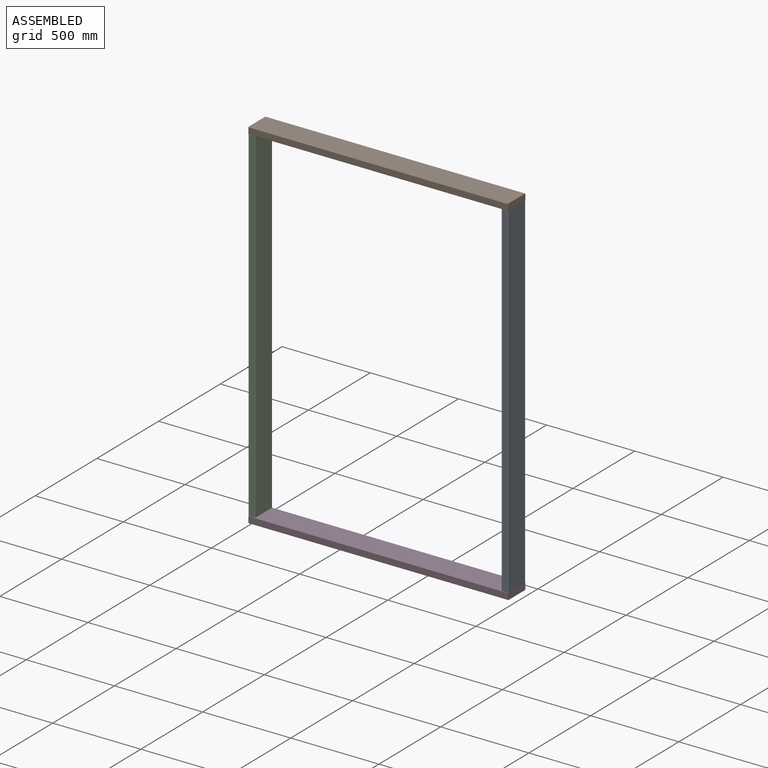
[diagram: assembled view]
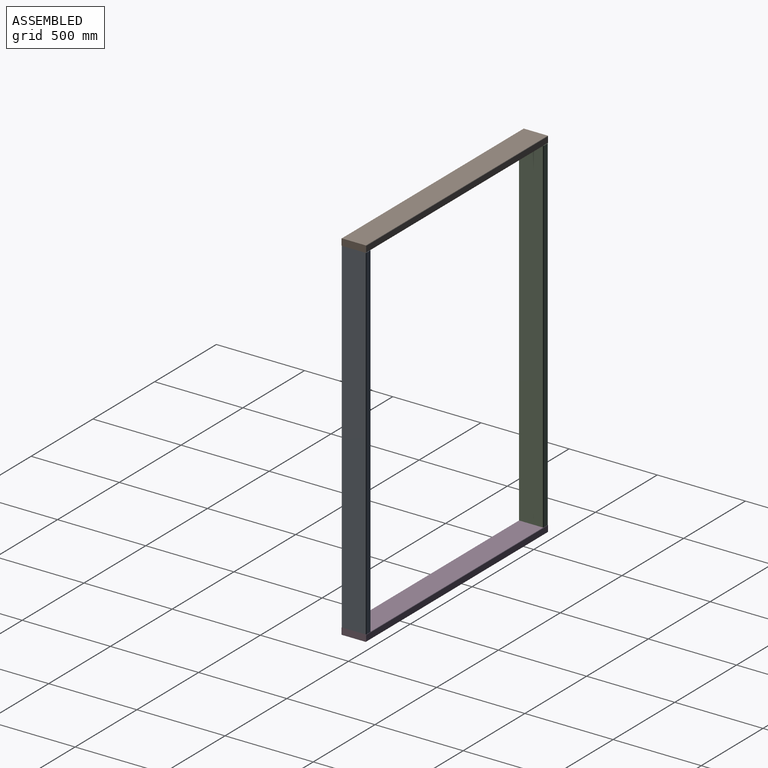
[diagram: assembled view, second angle]
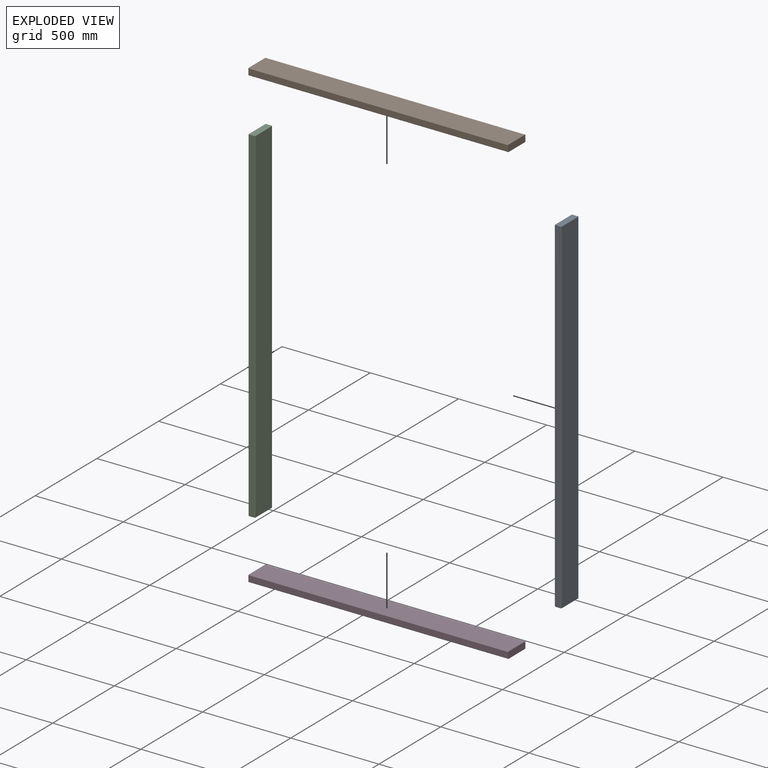
[diagram: exploded view]
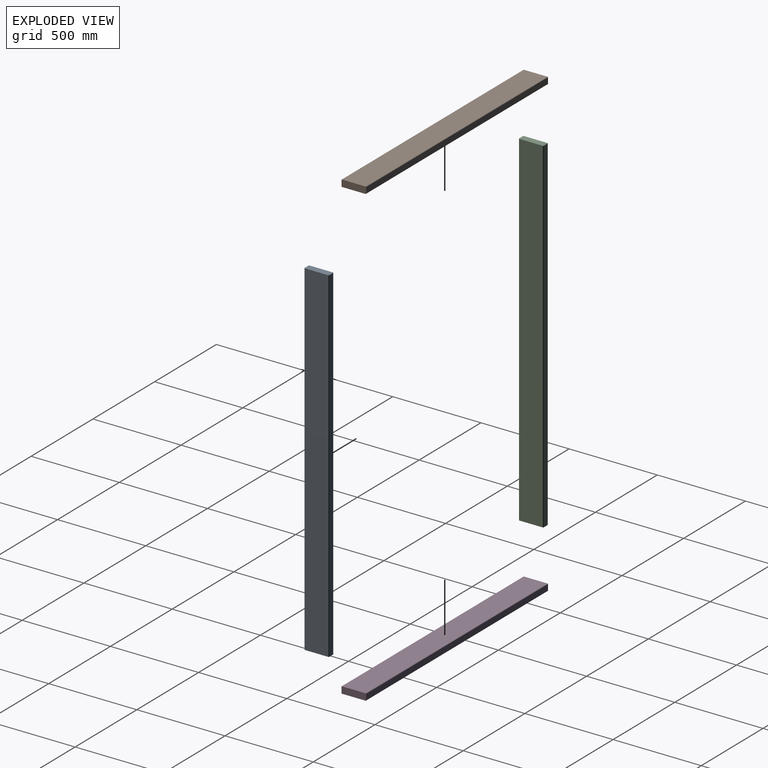
[diagram: exploded view, second angle]
ASSEMBLY  parts=4 mates=9
PART A: 10 faces, bbox 139.7x38.1x1955.8 mm
  f0: plane 1955.8x31.75mm, normal (-1,0,0), area 62096.7mm2, adj f1,f7,f8,f9
  f1: cylinder r=3.17mm len=1955.8mm, axis (0,0,-1), area 9754.1mm2, adj f0,f2,f8,f9
  f2: plane 1955.8x133.35mm, normal (0,-1,0), area 260805.9mm2, adj f1,f3,f8,f9
  f3: cylinder r=3.17mm len=1955.8mm, axis (0,0,-1), area 9754.1mm2, adj f2,f4,f8,f9
  f4: plane 1955.8x31.75mm, normal (1,0,0), area 62096.7mm2, adj f3,f5,f8,f9
  f5: cylinder r=3.17mm len=1955.8mm, axis (0,0,-1), area 9754.1mm2, adj f4,f6,f8,f9
  f6: plane 1955.8x133.35mm, normal (0,1,0), area 260805.9mm2, adj f5,f7,f8,f9
  f7: cylinder r=3.17mm len=1955.8mm, axis (0,0,-1), area 9754.1mm2, adj f0,f6,f8,f9
  f8: plane 139.7x38.1mm, normal (0,0,1), area 5313.9mm2, adj f0,f1,f2,f3,f4,f5,f6,f7
  f9: plane 139.7x38.1mm, normal (0,0,-1), area 5313.9mm2, adj f0,f1,f2,f3,f4,f5,f6,f7
PART B: 10 faces, bbox 139.7x38.1x1473.2 mm
  f0: plane 1473.2x31.75mm, normal (-1,0,0), area 46774.1mm2, adj f1,f7,f8,f9
  f1: cylinder r=3.17mm len=1473.2mm, axis (0,0,-1), area 7347.3mm2, adj f0,f2,f8,f9
  f2: plane 1473.2x133.35mm, normal (0,-1,0), area 196451.2mm2, adj f1,f3,f8,f9
  f3: cylinder r=3.17mm len=1473.2mm, axis (0,0,-1), area 7347.3mm2, adj f2,f4,f8,f9
  f4: plane 1473.2x31.75mm, normal (1,0,0), area 46774.1mm2, adj f3,f5,f8,f9
  f5: cylinder r=3.17mm len=1473.2mm, axis (0,0,-1), area 7347.3mm2, adj f4,f6,f8,f9
  f6: plane 1473.2x133.35mm, normal (0,1,0), area 196451.2mm2, adj f5,f7,f8,f9
  f7: cylinder r=3.17mm len=1473.2mm, axis (0,0,-1), area 7347.3mm2, adj f0,f6,f8,f9
  f8: plane 139.7x38.1mm, normal (0,0,1), area 5313.9mm2, adj f0,f1,f2,f3,f4,f5,f6,f7
  f9: plane 139.7x38.1mm, normal (0,0,-1), area 5313.9mm2, adj f0,f1,f2,f3,f4,f5,f6,f7
PART C: same geometry as A
PART D: same geometry as B
PLACE A rot(axis=(0,0,1),90deg) t=(857.04,-206.65,-3530.93)mm
PLACE B rot(axis=(0.58,0.58,0.58),120deg) t=(-597.11,-206.65,-1556.08)mm
PLACE C rot(axis=(0,0,-1),90deg) t=(-578.06,-206.65,-3530.93)mm
PLACE D rot(axis=(0.58,-0.58,-0.58),120deg) t=(876.09,-206.65,-3549.98)mm
MATE planar C.f0 <-> B.f4  axis (0,1,0) through (-578.06,-136.8,-2553.03)mm
MATE planar D.f6 <-> C.f9  axis (0,0,1) through (139.49,-206.65,-3530.93)mm
MATE planar D.f4 <-> C.f4  axis (0,-1,0) through (139.49,-276.5,-3549.98)mm
MATE planar B.f2 <-> C.f8  axis (0,0,-1) through (139.49,-206.65,-1575.13)mm
MATE planar D.f4 <-> A.f0  axis (0,-1,0) through (876.09,-276.5,-3565.85)mm
MATE planar A.f7 <-> D.f6  axis (0,0,-1) through (841.17,-273.33,-3530.93)mm
MATE planar A.f2 <-> D.f9  axis (1,0,0) through (876.09,-206.65,-2553.03)mm
MATE planar C.f2 <-> D.f8  axis (-1,0,0) through (-597.11,-206.65,-3530.93)mm
MATE planar C.f2 <-> B.f9  axis (-1,0,0) through (-597.11,-206.65,-2553.03)mm
